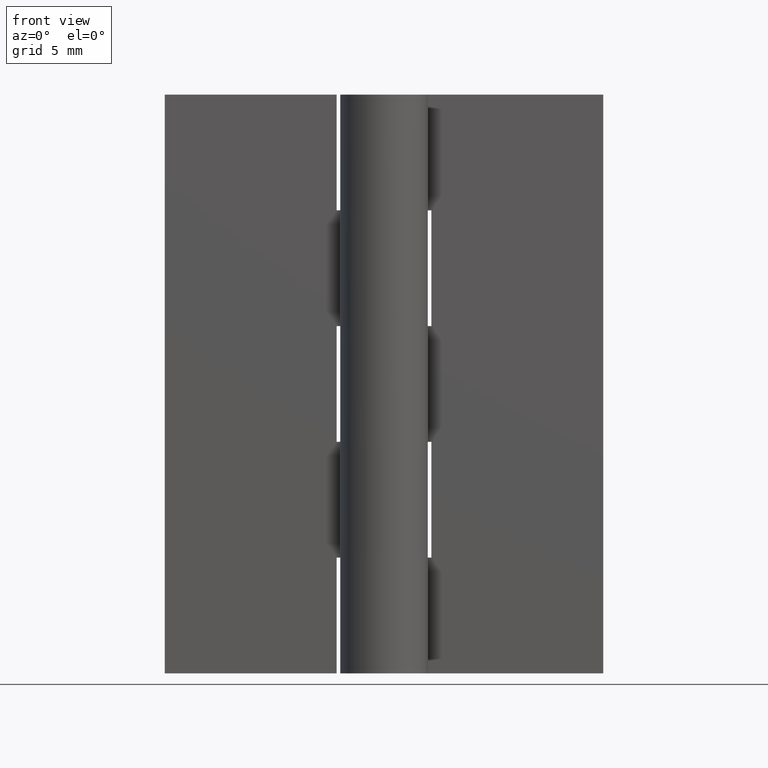
[diagram: clean part render]
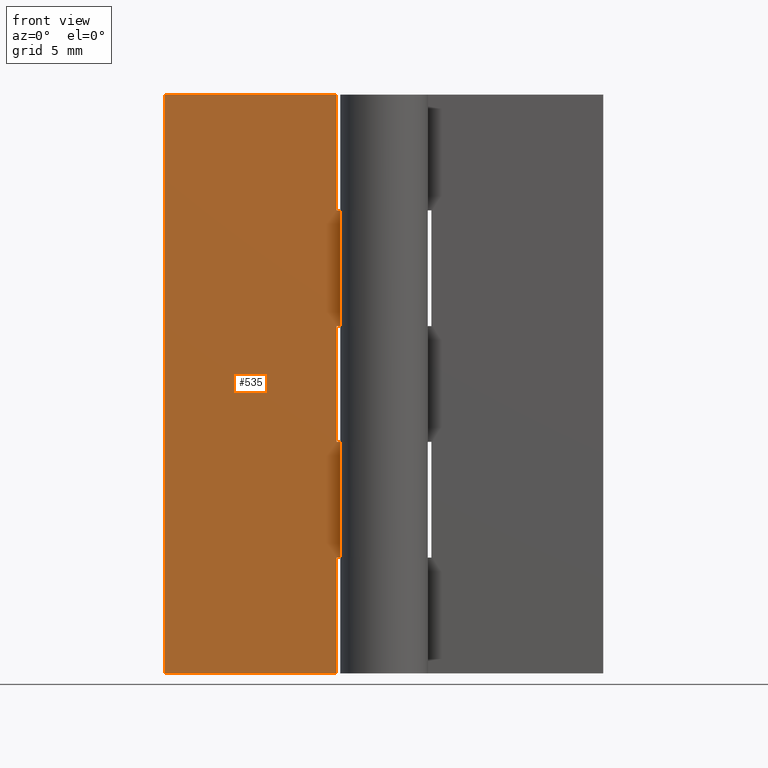
[diagram: same view with one face highlighted and labeled with its STEP entity id]
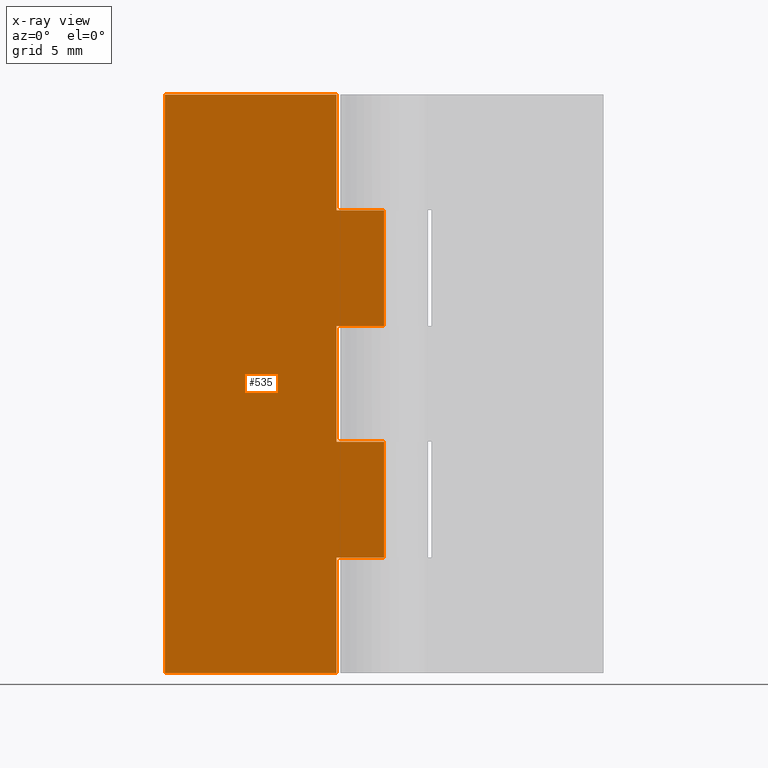
[diagram: x-ray of the same camera — body ghosted, the highlighted face saturated]
A machine part, front view. The second image highlights one B-rep face of the part: STEP entity #535.
The next image is the same camera in x-ray: the body ghosted, the highlighted face saturated — about 0% of this face is hidden behind the body in this view.
In plain terms, the highlighted face is a freeform B-spline surface patch.
Its self-contained STEP definition (entity closure, byte-faithful):
#58=CARTESIAN_POINT('',(-2.699997000000000,1.500000000000000,13.199996999999961));
#59=VERTEX_POINT('',#58);
#65=CARTESIAN_POINT('',(9.184352E-017,1.500000000000000,13.199996999999961));
#66=VERTEX_POINT('',#65);
#67=CARTESIAN_POINT('',(9.184352E-017,1.500000000000000,13.199996999999961));
#68=CARTESIAN_POINT('',(-2.699997000000000,1.500000000000000,13.199996999999961));
#69=QUASI_UNIFORM_CURVE('',1,(#67,#68),.UNSPECIFIED.,.F.,.U.);
#70=EDGE_CURVE('',#66,#59,#69,.T.);
#135=CARTESIAN_POINT('',(-2.699997000000000,1.499999999999946,19.800003000000000));
#136=VERTEX_POINT('',#135);
#142=CARTESIAN_POINT('',(-2.699997000000000,1.500000000000000,13.199996999999961));
#143=CARTESIAN_POINT('',(-2.699997000000000,1.499999999999946,19.800003000000000));
#144=QUASI_UNIFORM_CURVE('',1,(#142,#143),.UNSPECIFIED.,.F.,.U.);
#145=EDGE_CURVE('',#59,#136,#144,.T.);
#185=CARTESIAN_POINT('',(9.184352E-017,1.500000000000000,19.800003000000050));
#186=VERTEX_POINT('',#185);
#206=CARTESIAN_POINT('',(-2.699997000000000,1.499999999999946,19.800003000000000));
#207=CARTESIAN_POINT('',(9.184352E-017,1.500000000000000,19.800003000000050));
#208=QUASI_UNIFORM_CURVE('',1,(#206,#207),.UNSPECIFIED.,.F.,.U.);
#209=EDGE_CURVE('',#136,#186,#208,.T.);
#255=CARTESIAN_POINT('',(9.184352E-017,1.500000000000000,6.599998000000110));
#256=VERTEX_POINT('',#255);
#276=CARTESIAN_POINT('',(-2.699997000000000,1.499999999999946,6.599998000000100));
#277=VERTEX_POINT('',#276);
#278=CARTESIAN_POINT('',(-2.699997000000000,1.499999999999946,6.599998000000100));
#279=CARTESIAN_POINT('',(9.184352E-017,1.500000000000000,6.599998000000110));
#280=QUASI_UNIFORM_CURVE('',1,(#278,#279),.UNSPECIFIED.,.F.,.U.);
#281=EDGE_CURVE('',#277,#256,#280,.T.);
#303=CARTESIAN_POINT('',(-2.699997000000000,1.500000000000000,0.0));
#304=VERTEX_POINT('',#303);
#318=CARTESIAN_POINT('',(-2.699997000000000,1.500000000000000,0.0));
#319=CARTESIAN_POINT('',(-2.699997000000000,1.499999999999946,6.599998000000100));
#320=QUASI_UNIFORM_CURVE('',1,(#318,#319),.UNSPECIFIED.,.F.,.U.);
#321=EDGE_CURVE('',#304,#277,#320,.T.);
#340=CARTESIAN_POINT('',(-2.699997000000000,1.499999999999946,26.400001999999901));
#341=VERTEX_POINT('',#340);
#347=CARTESIAN_POINT('',(9.184352E-017,1.500000000000000,26.400001999999901));
#348=VERTEX_POINT('',#347);
#349=CARTESIAN_POINT('',(9.184352E-017,1.500000000000000,26.400001999999901));
#350=CARTESIAN_POINT('',(-2.699997000000000,1.499999999999946,26.400001999999901));
#351=QUASI_UNIFORM_CURVE('',1,(#349,#350),.UNSPECIFIED.,.F.,.U.);
#352=EDGE_CURVE('',#348,#341,#351,.T.);
#417=CARTESIAN_POINT('',(-2.699997000000000,1.499999999999946,33.0));
#418=VERTEX_POINT('',#417);
#424=CARTESIAN_POINT('',(-2.699997000000000,1.499999999999946,26.400001999999901));
#425=CARTESIAN_POINT('',(-2.699997000000000,1.499999999999946,33.0));
#426=QUASI_UNIFORM_CURVE('',1,(#424,#425),.UNSPECIFIED.,.F.,.U.);
#427=EDGE_CURVE('',#341,#418,#426,.T.);
#437=CARTESIAN_POINT('',(-12.500000000000000,1.500000000000000,0.0));
#438=VERTEX_POINT('',#437);
#446=CARTESIAN_POINT('',(-12.500000000000000,1.500000000000000,33.0));
#447=VERTEX_POINT('',#446);
#448=CARTESIAN_POINT('',(-12.500000000000000,1.500000000000000,33.0));
#449=CARTESIAN_POINT('',(-12.500000000000000,1.500000000000000,0.0));
#450=QUASI_UNIFORM_CURVE('',1,(#448,#449),.UNSPECIFIED.,.F.,.U.);
#451=EDGE_CURVE('',#447,#438,#450,.T.);
#480=CARTESIAN_POINT('',(-2.699997000000000,1.499999999999946,33.0));
#481=CARTESIAN_POINT('',(-12.500000000000000,1.500000000000000,33.0));
#482=QUASI_UNIFORM_CURVE('',1,(#480,#481),.UNSPECIFIED.,.F.,.U.);
#483=EDGE_CURVE('',#418,#447,#482,.T.);
#499=CARTESIAN_POINT('',(-2.699997000000000,1.500000000000000,0.0));
#500=CARTESIAN_POINT('',(-12.500000000000000,1.500000000000000,0.0));
#501=QUASI_UNIFORM_CURVE('',1,(#499,#500),.UNSPECIFIED.,.F.,.U.);
#502=EDGE_CURVE('',#304,#438,#501,.T.);
#508=CARTESIAN_POINT('',(-13.124374975772570,1.500000000000000,34.648349936039587));
#509=CARTESIAN_POINT('',(-13.124374975772570,1.500000000000000,-1.648350821168572));
#510=CARTESIAN_POINT('',(0.624375311048701,1.500000000000000,34.648349936039587));
#511=CARTESIAN_POINT('',(0.624375311048701,1.500000000000000,-1.648350821168572));
#512=B_SPLINE_SURFACE_WITH_KNOTS('',1,1,((#508,#510),(#509,#511)),.UNSPECIFIED.,.F.,.F.,.U.,(2,2),(2,2),(0.0,36.296700757208157),(0.0,13.748750286821281),.UNSPECIFIED.);
#513=ORIENTED_EDGE('',*,*,#145,.T.);
#514=ORIENTED_EDGE('',*,*,#209,.T.);
#515=CARTESIAN_POINT('',(9.184352E-017,1.500000000000000,26.400001999999901));
#516=CARTESIAN_POINT('',(9.184352E-017,1.500000000000000,19.800003000000050));
#517=QUASI_UNIFORM_CURVE('',1,(#515,#516),.UNSPECIFIED.,.F.,.U.);
#518=EDGE_CURVE('',#348,#186,#517,.T.);
#519=ORIENTED_EDGE('',*,*,#518,.F.);
#520=ORIENTED_EDGE('',*,*,#352,.T.);
#521=ORIENTED_EDGE('',*,*,#427,.T.);
#522=ORIENTED_EDGE('',*,*,#483,.T.);
#523=ORIENTED_EDGE('',*,*,#451,.T.);
#524=ORIENTED_EDGE('',*,*,#502,.F.);
#525=ORIENTED_EDGE('',*,*,#321,.T.);
#526=ORIENTED_EDGE('',*,*,#281,.T.);
#527=CARTESIAN_POINT('',(9.184352E-017,1.500000000000000,13.199996999999961));
#528=CARTESIAN_POINT('',(9.184352E-017,1.500000000000000,6.599998000000110));
#529=QUASI_UNIFORM_CURVE('',1,(#527,#528),.UNSPECIFIED.,.F.,.U.);
#530=EDGE_CURVE('',#66,#256,#529,.T.);
#531=ORIENTED_EDGE('',*,*,#530,.F.);
#532=ORIENTED_EDGE('',*,*,#70,.T.);
#533=EDGE_LOOP('',(#513,#514,#519,#520,#521,#522,#523,#524,#525,#526,#531,#532));
#534=FACE_OUTER_BOUND('',#533,.T.);
#535=ADVANCED_FACE('',(#534),#512,.T.);